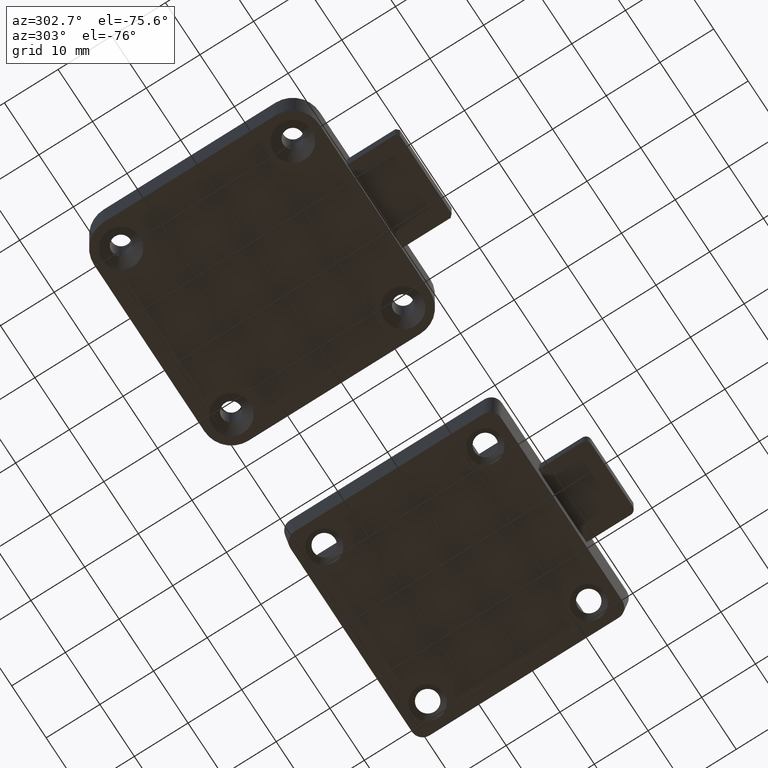
[diagram: clean part render]
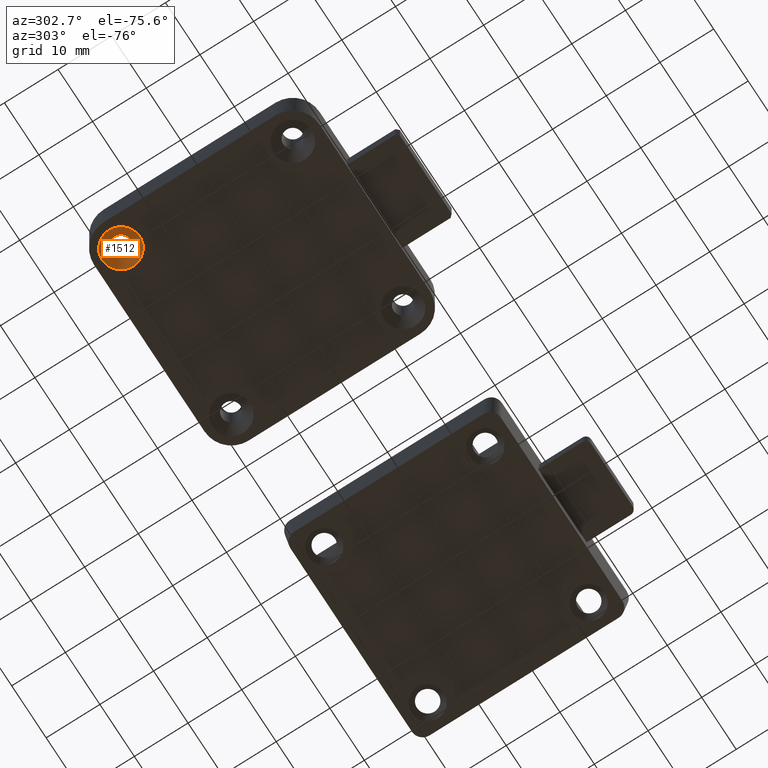
[diagram: same view with one face highlighted and labeled with its STEP entity id]
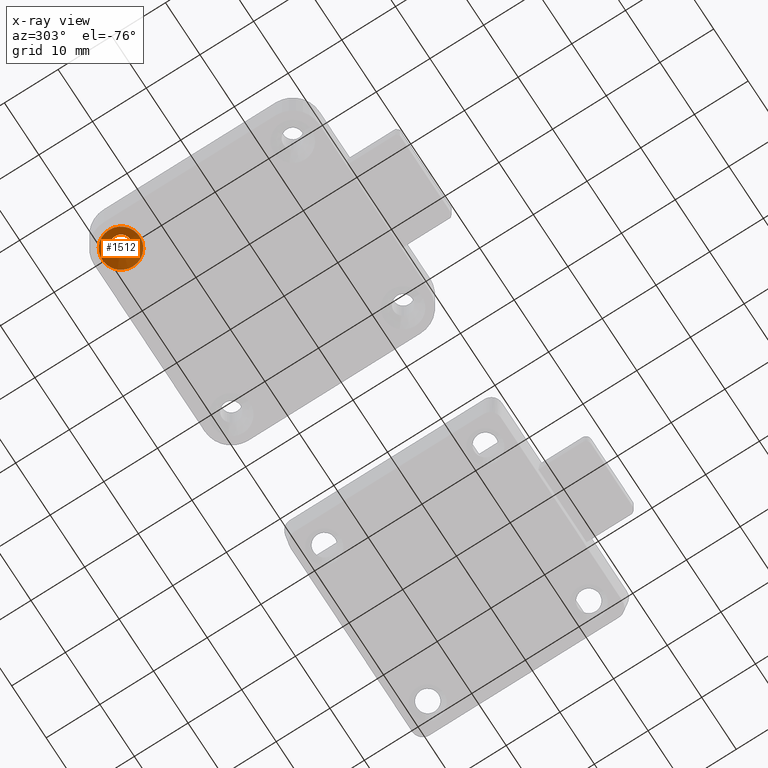
[diagram: x-ray of the same camera — body ghosted, the highlighted face saturated]
A machine part, auxiliary view. The second image highlights one B-rep face of the part: STEP entity #1512.
The next image is the same camera in x-ray: the body ghosted, the highlighted face saturated — about 0% of this face is hidden behind the body in this view.
In plain terms, the highlighted conical surface has half-angle 45 deg.
Its self-contained STEP definition (entity closure, byte-faithful):
#53=CONICAL_SURFACE('',#1616,2.625,45.);
#62=FACE_BOUND('',#213,.T.);
#120=FACE_OUTER_BOUND('',#212,.T.);
#212=EDGE_LOOP('',(#1074));
#213=EDGE_LOOP('',(#1075));
#614=CIRCLE('',#1617,3.5);
#615=CIRCLE('',#1618,1.75);
#684=VERTEX_POINT('',#2318);
#685=VERTEX_POINT('',#2320);
#840=EDGE_CURVE('',#684,#684,#614,.T.);
#841=EDGE_CURVE('',#685,#685,#615,.T.);
#1074=ORIENTED_EDGE('',*,*,#840,.F.);
#1075=ORIENTED_EDGE('',*,*,#841,.F.);
#1512=ADVANCED_FACE('',(#120,#62),#53,.F.);
#1616=AXIS2_PLACEMENT_3D('',#2317,#1808,#1809);
#1617=AXIS2_PLACEMENT_3D('',#2319,#1810,#1811);
#1618=AXIS2_PLACEMENT_3D('',#2321,#1812,#1813);
#1808=DIRECTION('center_axis',(0.,0.,-1.));
#1809=DIRECTION('ref_axis',(-1.,0.,0.));
#1810=DIRECTION('center_axis',(0.,0.,1.));
#1811=DIRECTION('ref_axis',(-1.,0.,0.));
#1812=DIRECTION('center_axis',(0.,0.,-1.));
#1813=DIRECTION('ref_axis',(-1.,0.,0.));
#2317=CARTESIAN_POINT('Origin',(-16.,16.,0.875));
#2318=CARTESIAN_POINT('',(-19.5,16.,0.));
#2319=CARTESIAN_POINT('Origin',(-16.,16.,0.));
#2320=CARTESIAN_POINT('',(-17.75,16.,1.75));
#2321=CARTESIAN_POINT('Origin',(-16.,16.,1.75));